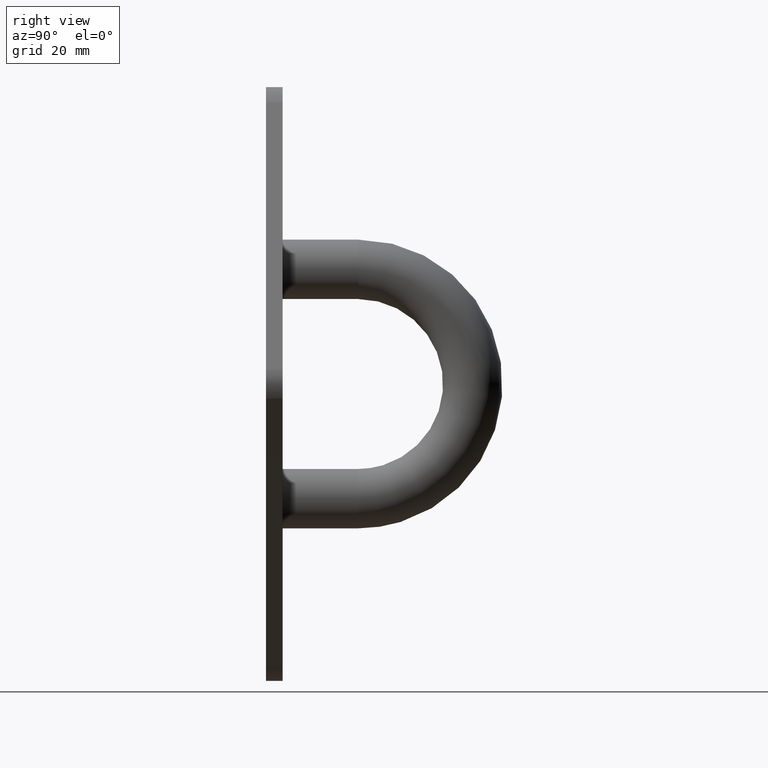
[diagram: clean part render]
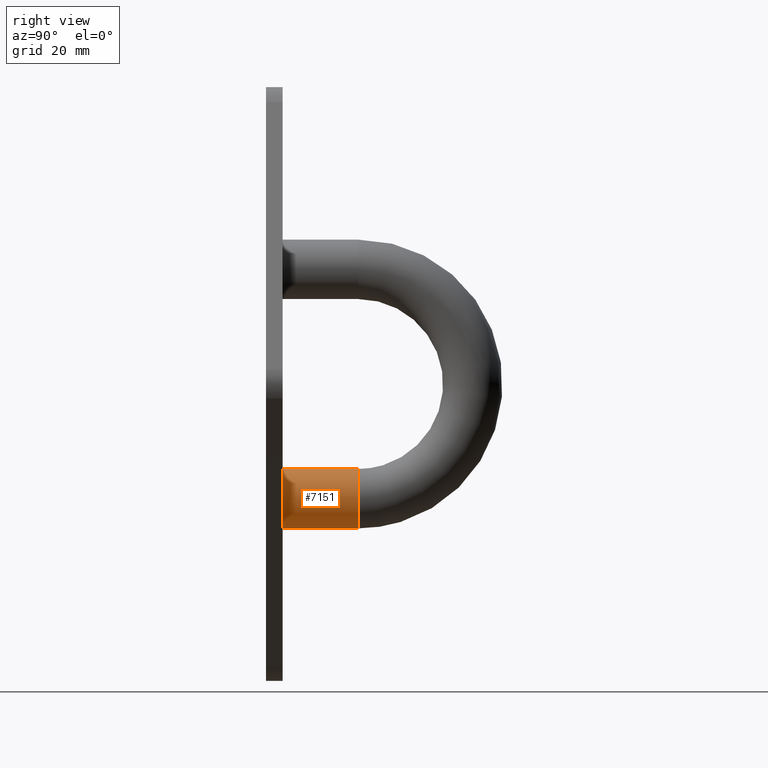
[diagram: same view with one face highlighted and labeled with its STEP entity id]
A machine part, right view. The second image highlights one B-rep face of the part: STEP entity #7151.
In plain terms, the highlighted cylindrical surface (bore or boss wall) has radius 5 mm, axis along (0, -1, -0).
Its self-contained STEP definition (entity closure, byte-faithful):
#184 = CIRCLE ( 'NONE', #5192, 5.000000000000000888 ) ;
#528 = DIRECTION ( 'NONE',  ( 0.000000000000000000, 0.000000000000000000, 1.000000000000000000 ) ) ;
#1114 = EDGE_LOOP ( 'NONE', ( #7293 ) ) ;
#1139 = CYLINDRICAL_SURFACE ( 'NONE', #5114, 5.000000000000000888 ) ;
#1465 = DIRECTION ( 'NONE',  ( -0.000000000000000000, -1.000000000000000000, -0.000000000000000000 ) ) ;
#1604 = CARTESIAN_POINT ( 'NONE',  ( 0.000000000000000000, 15.49999999999999822, -19.29999999999999716 ) ) ;
#2277 = FACE_OUTER_BOUND ( 'NONE', #8443, .T. ) ;
#3500 = CARTESIAN_POINT ( 'NONE',  ( 0.000000000000000000, 15.49999999999999822, -19.29999999999999716 ) ) ;
#3729 = CIRCLE ( 'NONE', #5512, 5.000000000000000888 ) ;
#4045 = VERTEX_POINT ( 'NONE', #5628 ) ;
#4216 = EDGE_CURVE ( 'NONE', #4483, #4483, #184, .T. ) ;
#4483 = VERTEX_POINT ( 'NONE', #5488 ) ;
#5114 = AXIS2_PLACEMENT_3D ( 'NONE', #1604, #5716, #10671 ) ;
#5192 = AXIS2_PLACEMENT_3D ( 'NONE', #3500, #7619, #528 ) ;
#5488 = CARTESIAN_POINT ( 'NONE',  ( 0.000000000000000000, 15.49999999999999822, -14.29999999999999716 ) ) ;
#5512 = AXIS2_PLACEMENT_3D ( 'NONE', #7565, #1465, #12757 ) ;
#5628 = CARTESIAN_POINT ( 'NONE',  ( 0.000000000000000000, 2.800000000000000266, -14.29999999999999716 ) ) ;
#5716 = DIRECTION ( 'NONE',  ( 0.000000000000000000, -1.000000000000000000, -1.119176436114069085E-16 ) ) ;
#7151 = ADVANCED_FACE ( 'NONE', ( #11484, #2277 ), #1139, .T. ) ;
#7293 = ORIENTED_EDGE ( 'NONE', *, *, #9093, .F. ) ;
#7565 = CARTESIAN_POINT ( 'NONE',  ( 0.000000000000000000, 2.800000000000000266, -19.29999999999999716 ) ) ;
#7619 = DIRECTION ( 'NONE',  ( 0.000000000000000000, 1.000000000000000000, 1.224646799147353207E-16 ) ) ;
#8180 = ORIENTED_EDGE ( 'NONE', *, *, #4216, .F. ) ;
#8443 = EDGE_LOOP ( 'NONE', ( #8180 ) ) ;
#9093 = EDGE_CURVE ( 'NONE', #4045, #4045, #3729, .T. ) ;
#10671 = DIRECTION ( 'NONE',  ( 0.000000000000000000, 0.000000000000000000, -1.000000000000000000 ) ) ;
#11484 = FACE_OUTER_BOUND ( 'NONE', #1114, .T. ) ;
#12757 = DIRECTION ( 'NONE',  ( 0.000000000000000000, 0.000000000000000000, 1.000000000000000000 ) ) ;